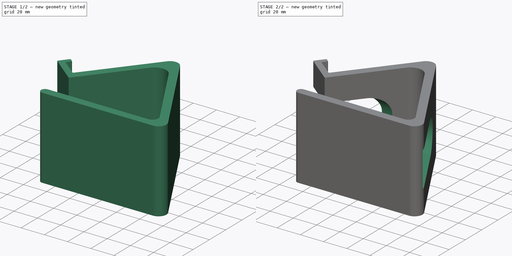
[diagram: build sequence overview — one tinted view per stage of 2, left to right]
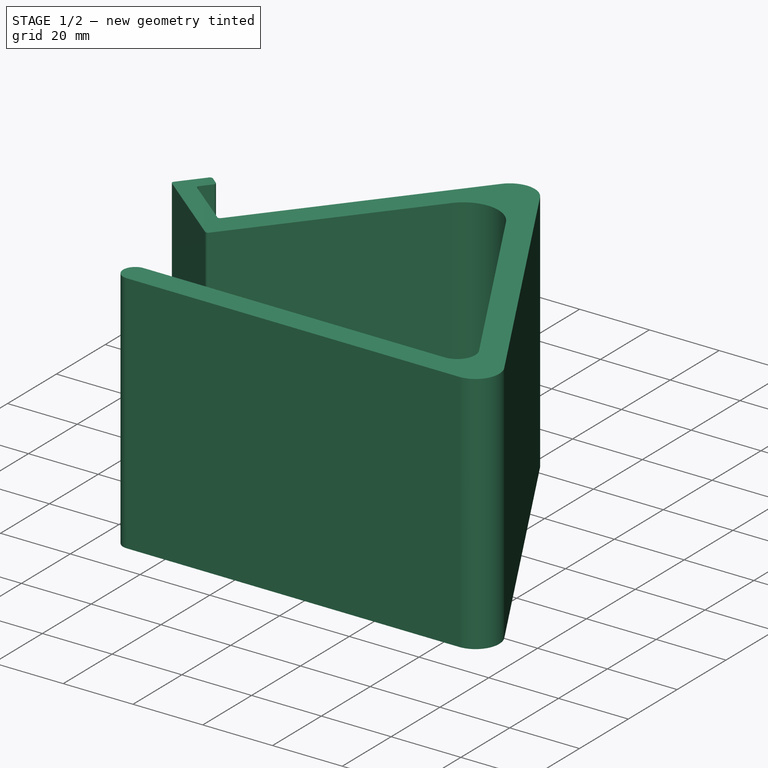
[diagram: stage 1 of 2 — iso view after this stage's code; geometry added in this stage tinted green]
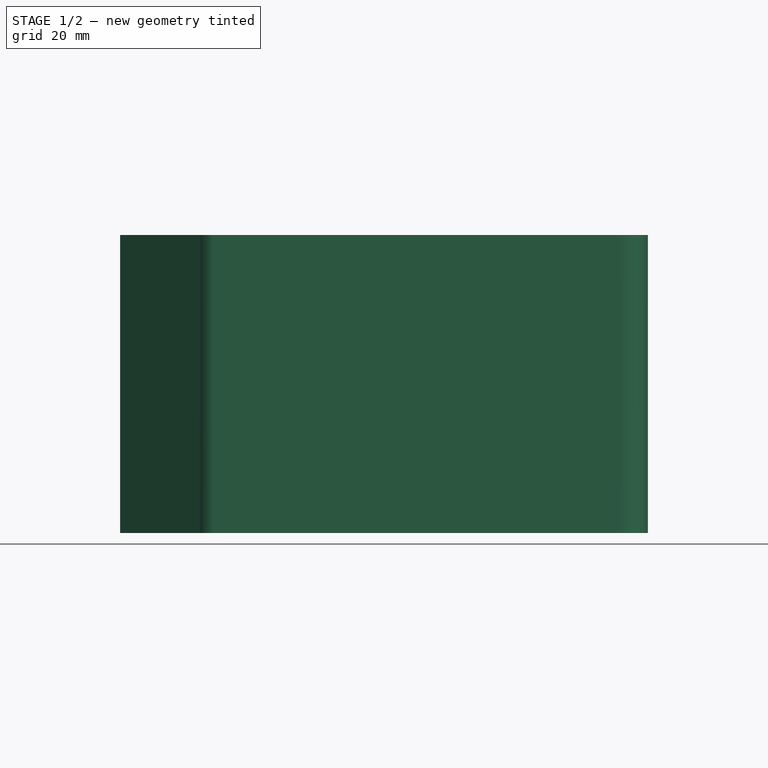
[diagram: stage 1 of 2 — front view after this stage's code; geometry added in this stage tinted green]
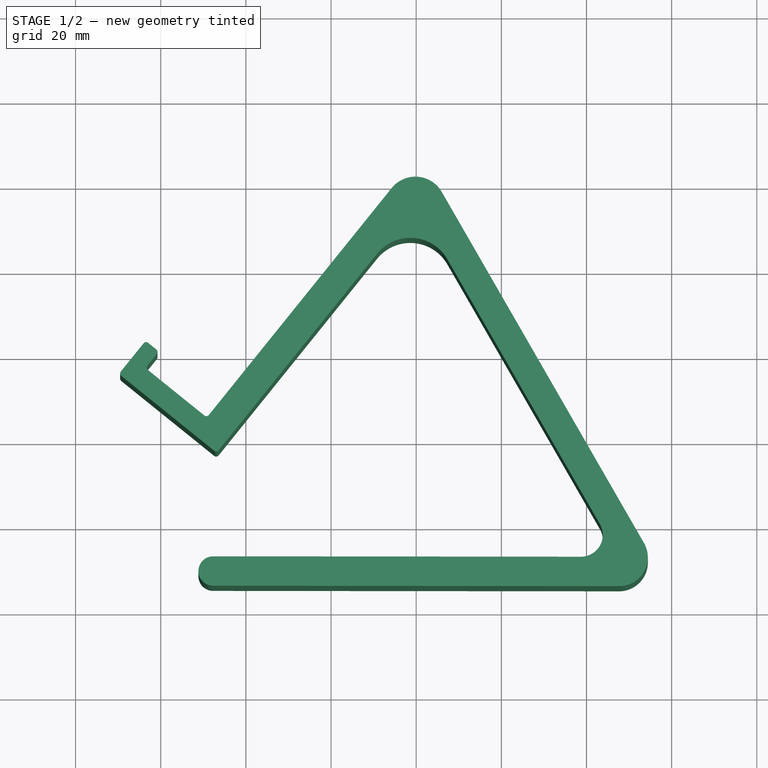
[diagram: stage 1 of 2 — top view after this stage's code; geometry added in this stage tinted green]
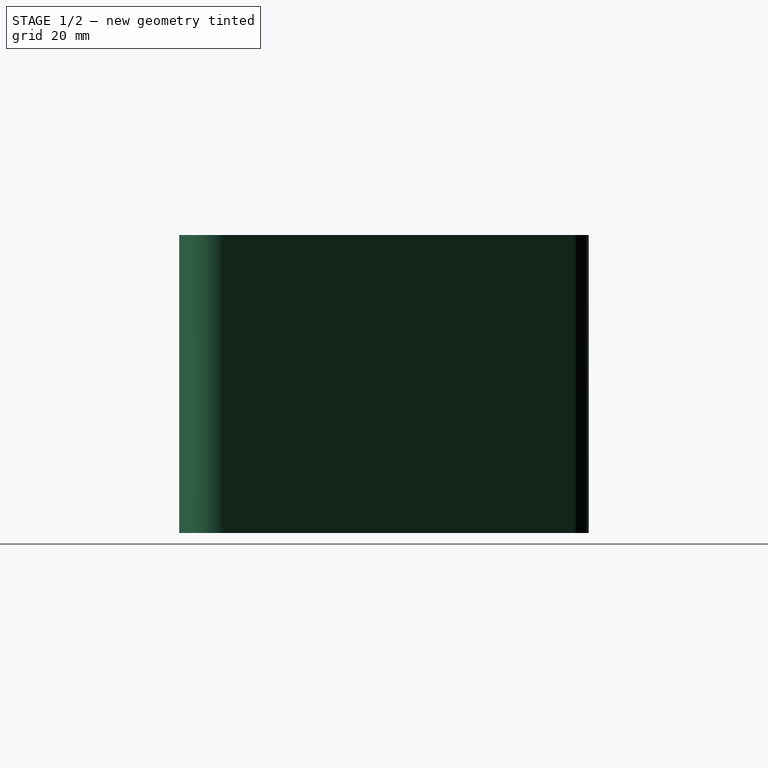
[diagram: stage 1 of 2 — right view after this stage's code; geometry added in this stage tinted green]
FCSTD DOCUMENT  (FreeCAD 1.0RUnknown)
Label: Phone-stand
License: All rights reserved
LicenseURL: https://en.wikipedia.org/wiki/All_rights_reserved
objects: Sketcher::SketchObject×2, PartDesign::Pad×1, PartDesign::Pocket×1, PartDesign::Body×1
note: 11 computed .brp shape members not serialized (recipe doc carries the construction recipe); baked Part::Feature solids carry a one-line shape summary decoded from their .brp

FEATURE [Sketcher::SketchObject] Sketch
  ArcFitTolerance = 1e-06
  AttachmentSupport = -> [XY_Plane]
  FullyConstrained = false
  MakeInternals = false
  MapMode = 5
  sketch-geometry (31):
    g0: LineSegment StartX=-9.20138 StartY=43.5798 StartZ=0 EndX=-46.3912 EndY=-2.578 EndZ=0
    g1: LineSegment StartX=-47.631 StartY=-27.5006 StartZ=0 EndX=38.6709 EndY=-27.5927 EndZ=0
    g2: LineSegment StartX=43.1299 StartY=-19.8886 StartZ=0 EndX=7.31928 EndY=42.2911 EndZ=0
    g3: Circle [constr] CenterX=0 CenterY=0 CenterZ=0 NormalX=0 NormalY=0 NormalZ=1 AngleXU=0 Radius=55
    g4: LineSegment StartX=-47.7568 StartY=-34.4055 StartZ=0 EndX=47.6405 EndY=-34.5072 EndZ=0
    g5: ArcOfCircle CenterX=47.6477 CenterY=-27.7485 CenterZ=0 NormalX=0 NormalY=0 NormalZ=-1 AngleXU=1.0472 Radius=6.75866 StartAngle=1.57187 EndAngle=3.66626
    g6: LineSegment StartX=53.5045 StartY=-24.3755 StartZ=0 EndX=5.99845 EndY=58.1117 EndZ=0
    g7: ArcOfCircle CenterX=-0.186467 CenterY=54.5497 CenterZ=0 NormalX=0 NormalY=0 NormalZ=-1 AngleXU=-1.0472 Radius=7.13731 StartAngle=1.72541 EndAngle=3.66626
    g8: LineSegment StartX=-5.74426 StartY=59.0277 StartZ=0 EndX=-48.705 EndY=5.70729 EndZ=0
    g9: ArcOfCircle CenterX=-47.6993 CenterY=-30.953 CenterZ=0 NormalX=0 NormalY=0 NormalZ=1 AngleXU=0 Radius=3.45299 StartAngle=1.55101 EndAngle=4.69575
    g10: ArcOfCircle CenterX=-1.3822 CenterY=37.2798 CenterZ=0 NormalX=0 NormalY=0 NormalZ=1 AngleXU=0 Radius=10.0414 StartAngle=0.522526 EndAngle=2.46338
    g11: GeomPoint [constr] X=0 Y=55 Z=0
    g12: ArcOfCircle CenterX=38.6764 CenterY=-22.4535 CenterZ=0 NormalX=0 NormalY=0 NormalZ=1 AngleXU=0 Radius=5.13922 StartAngle=4.71132 EndAngle=6.80571
    g13: GeomPoint [constr] X=47.5723 Y=-27.6022 Z=0
    g14: LineSegment StartX=-49.7596 StartY=5.59382 StartZ=0 EndX=-62.9974 EndY=16.2597 EndZ=0
    g15: LineSegment StartX=-63.1109 StartY=17.3142 StartZ=0 EndX=-60.915 EndY=20.0397 EndZ=0
    g16: LineSegment StartX=-61.0284 StartY=21.0942 StartZ=0 EndX=-62.9752 EndY=22.6628 EndZ=0
    g17: LineSegment StartX=-64.0298 StartY=22.5493 StartZ=0 EndX=-69.3627 EndY=15.9304 EndZ=0
    g18: LineSegment StartX=-69.2492 StartY=14.8758 StartZ=0 EndX=-47.4457 EndY=-2.69147 EndZ=0
    g19: ArcOfCircle CenterX=-68.7787 CenterY=15.4598 CenterZ=0 NormalX=0 NormalY=0 NormalZ=1 AngleXU=0 Radius=0.75 StartAngle=2.46338 EndAngle=4.03418
    g20: GeomPoint [constr] X=-69.8332 Y=15.3464 Z=0
    g21: ArcOfCircle CenterX=-62.5269 CenterY=16.8437 CenterZ=0 NormalX=0 NormalY=0 NormalZ=1 AngleXU=0 Radius=0.75 StartAngle=2.46338 EndAngle=4.03418
    g22: GeomPoint [constr] X=-63.5814 Y=16.7302 Z=0
    g23: ArcOfCircle CenterX=-49.289 CenterY=6.17785 CenterZ=0 NormalX=0 NormalY=0 NormalZ=1 AngleXU=0 Radius=0.75 StartAngle=4.03418 EndAngle=5.60497
    g24: GeomPoint [constr] X=-49.1756 Y=5.12327 Z=0
    g25: ArcOfCircle CenterX=-46.9752 CenterY=-2.10745 CenterZ=0 NormalX=0 NormalY=0 NormalZ=1 AngleXU=0 Radius=0.75 StartAngle=4.03418 EndAngle=5.60497
    g26: GeomPoint [constr] X=-46.8617 Y=-3.16202 Z=0
    g27: ArcOfCircle CenterX=-61.499 CenterY=20.5102 CenterZ=0 NormalX=0 NormalY=0 NormalZ=1 AngleXU=0 Radius=0.75 StartAngle=5.60497 EndAngle=7.17577
    g28: GeomPoint [constr] X=-60.4444 Y=20.6237 Z=0
    g29: ArcOfCircle CenterX=-63.4457 CenterY=22.0787 CenterZ=0 NormalX=0 NormalY=0 NormalZ=1 AngleXU=0 Radius=0.75 StartAngle=0.892583 EndAngle=2.46338
    g30: GeomPoint [constr] X=-63.5592 Y=23.1333 Z=0
  constraints (63):
    c: PointOnObject(g1,g3)
    c: PointOnObject(g13,g3)
    c: PointOnObject(g11,g3)
    c: Radius(g3) = 55
    c: Coincident(g3,g-1)
    c: PointOnObject(g11,g-2)
    c: Tangent(g4,g5) = -1.5708
    c: Tangent(g5,g6) = -1.5708
    c: Tangent(g6,g7) = -1.5708
    c: Tangent(g7,g8) = -1.5708
    c: Coincident(g9,g1)
    c: Coincident(g9,g4)
    c: PointOnObject(g11,g0)
    c: PointOnObject(g11,g2)
    c: Tangent(g0,g10) = -1.5708
    c: Tangent(g2,g10) = -1.5708
    c: PointOnObject(g13,g1)
    c: PointOnObject(g13,g2)
    c: Tangent(g1,g12) = -1.5708
    c: Tangent(g2,g12) = -1.5708
    c: Perpendicular(g8,g14)
    c: Perpendicular(g17,g18)
    c: Perpendicular(g16,g15)
    c: Perpendicular(g18,g0)
    c: Parallel(g8,g0)
    c: Perpendicular(g16,g17)
    c: Distance(g0,g8) = 7
    c: Distance(g24,g18) = 5
    c: Distance(g30,g15) = 4
    c: Distance(g22,g28) = 5
    c: PointOnObject(g20,g18)
    c: PointOnObject(g20,g17)
    c: Tangent(g18,g19) = -1.5708
    c: Tangent(g17,g19) = -1.5708
    c: PointOnObject(g22,g14)
    c: PointOnObject(g22,g15)
    c: Tangent(g14,g21) = 1.5708
    c: Tangent(g15,g21) = 1.5708
    c: PointOnObject(g24,g14)
    c: PointOnObject(g24,g8)
    c: Tangent(g14,g23) = 1.5708
    c: Tangent(g8,g23) = 1.5708
    c: PointOnObject(g26,g0)
    c: PointOnObject(g26,g18)
    c: Tangent(g0,g25) = 1.5708
    c: Tangent(g18,g25) = -1.5708
    c: PointOnObject(g28,g15)
    c: PointOnObject(g28,g16)
    c: Tangent(g15,g27) = -1.5708
    c: Tangent(g16,g27) = -1.5708
    c: PointOnObject(g30,g17)
    c: PointOnObject(g30,g16)
    c: Tangent(g17,g29) = -1.5708
    c: Tangent(g16,g29) = -1.5708
    c: Equal(g27,g29)
    c: Equal(g29,g21)
    c: Equal(g21,g19)
    c: Equal(g19,g23)
    c: Equal(g23,g25)
    c: Radius(g19) = 0.75
    c: Distance(g14,g14) = 17
    c: Parallel(g2,g6)
    c: Parallel(g1,g4)
FEATURE [PartDesign::Pad] Pad
  Direction = (0,0,1)
  Length = 70
  Length2 = 10
  Profile = -> Sketch
  ReferenceAxis = -> Sketch [N_Axis]
  Refine = true
  Suppressed = false
  Type = 0
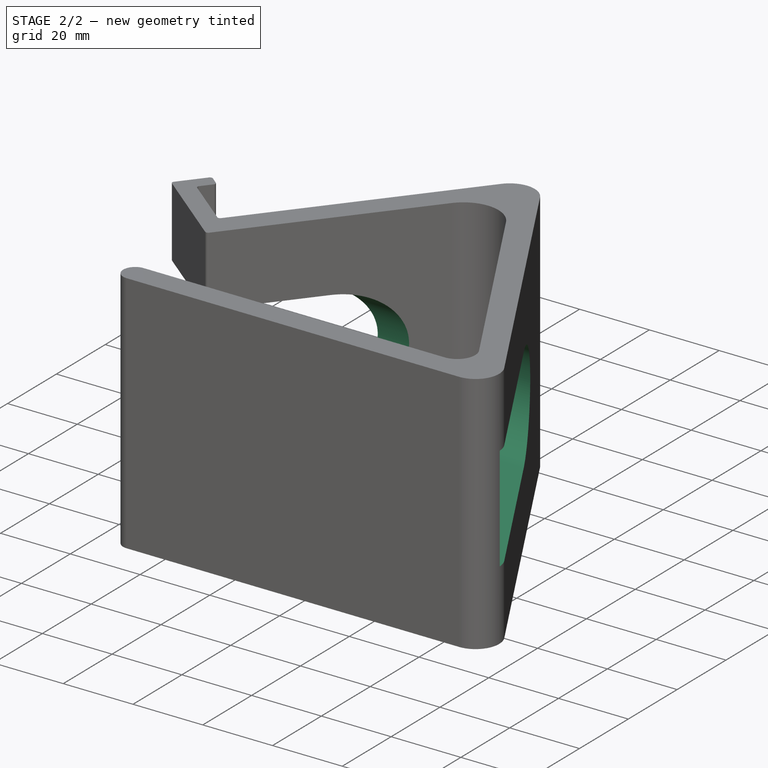
[diagram: stage 2 of 2 — iso view after this stage's code; geometry added in this stage tinted green]
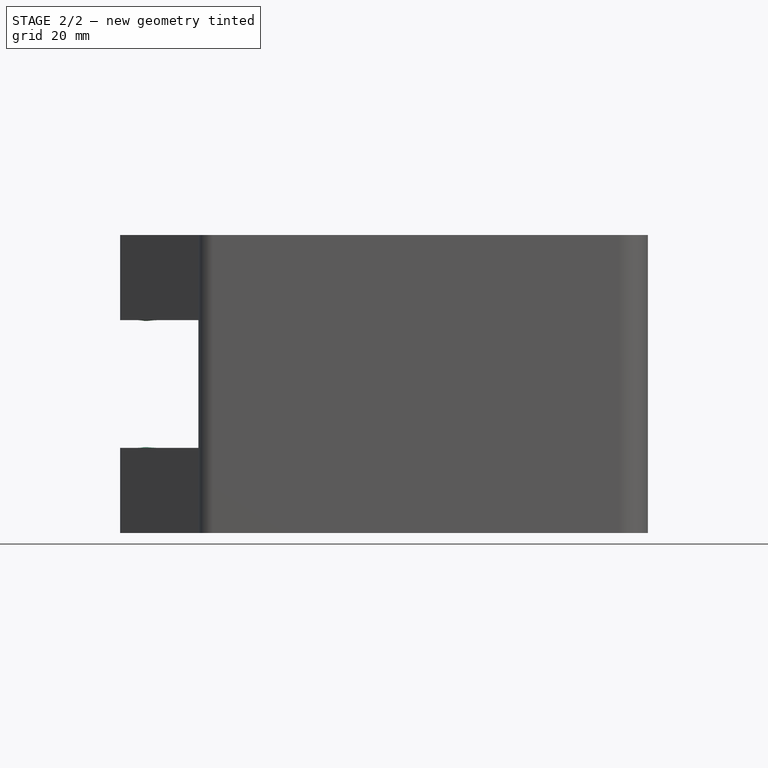
[diagram: stage 2 of 2 — front view after this stage's code; geometry added in this stage tinted green]
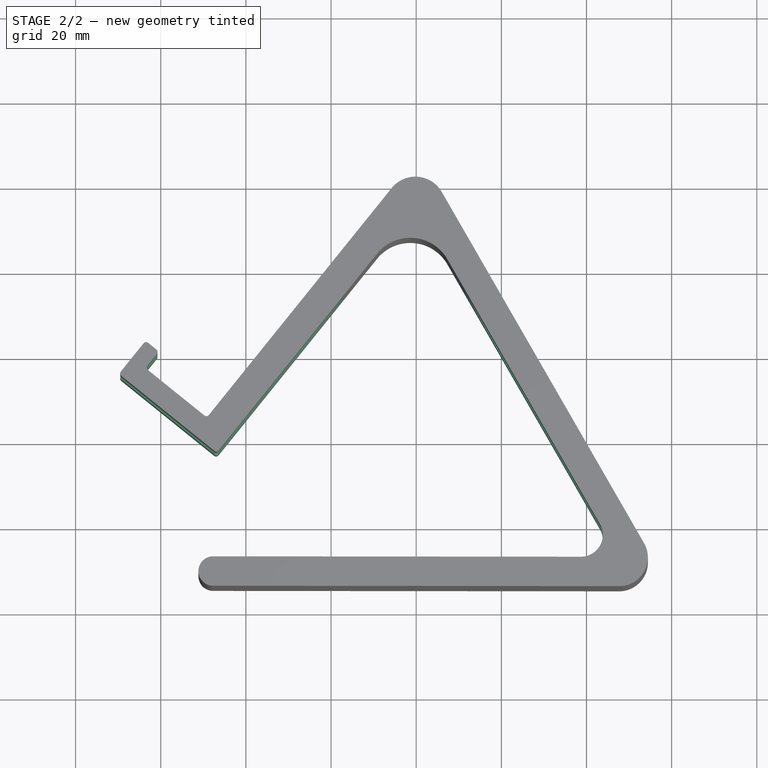
[diagram: stage 2 of 2 — top view after this stage's code; geometry added in this stage tinted green]
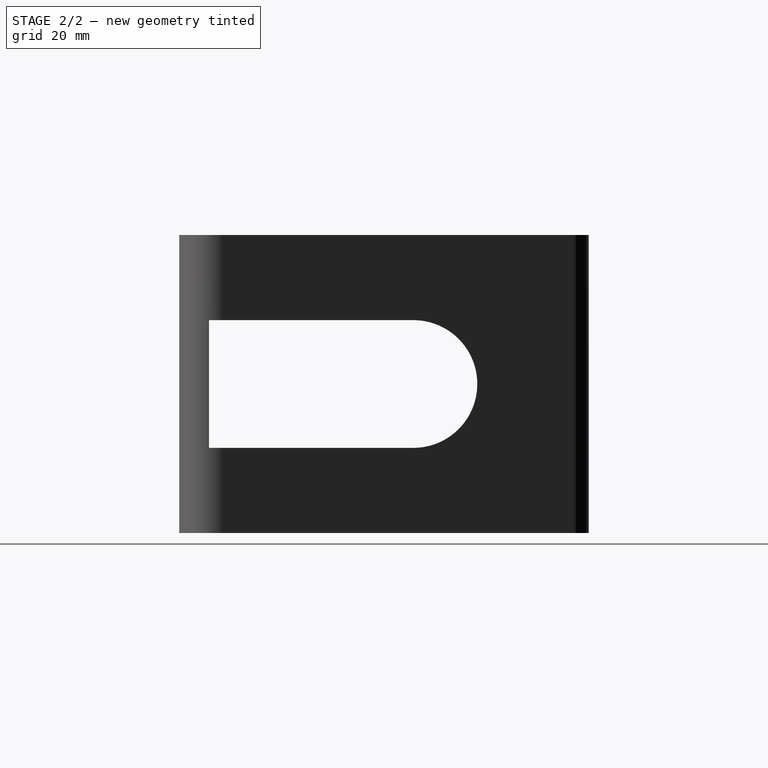
[diagram: stage 2 of 2 — right view after this stage's code; geometry added in this stage tinted green]
FEATURE [Sketcher::SketchObject] Sketch001
  ArcFitTolerance = 1e-06
  AttachmentSupport = -> [YZ_Plane]
  ExternalGeometry = -> [Pad]
  FullyConstrained = true
  MakeInternals = false
  MapMode = 5
  Placement = pos=(0,0,0) rot=(0.57735,0.57735,0.57735;2.0944rad)
  sketch-geometry (6):
    g0: LineSegment StartX=-27.5006 StartY=50 StartZ=0 EndX=-27.5006 EndY=20 EndZ=0
    g1: LineSegment StartX=-27.5006 StartY=20 StartZ=0 EndX=20.4994 EndY=20 EndZ=0
    g2: LineSegment StartX=20.4994 StartY=50 StartZ=0 EndX=-27.5006 EndY=50 EndZ=0
    g3: GeomPoint X=20.4994 Y=35 Z=0
    g4: ArcOfCircle CenterX=20.4994 CenterY=35 CenterZ=0 NormalX=0 NormalY=0 NormalZ=1 AngleXU=0 Radius=15 StartAngle=4.71239 EndAngle=7.85398
    g5: LineSegment [constr] StartX=-27.5006 StartY=35 StartZ=0 EndX=52.4994 EndY=35 EndZ=0
  constraints (17):
    c: Coincident(g0,g1)
    c: Coincident(g2,g0)
    c: Vertical(g0)
    c: Horizontal(g1)
    c: Horizontal(g2)
    c: Coincident(g4,g3)
    c: PointOnObject(g0,g-3)
    c: Horizontal(g5)
    c: PointOnObject(g3,g5)
    c: DistanceY(g0,g0) = 30
    c: DistanceX(g2,g2) = 48
    c: Symmetric(g-3,g-3,g5)
    c: Coincident(g2,g4)
    c: Coincident(g1,g4)
    c: Vertical(g3,g2)
    c: Vertical(g2,g1)
    c: DistanceX(g5,g5) = 80
FEATURE [PartDesign::Pocket] Pocket
  BaseFeature = -> Pad
  Direction = (-1,0,0)
  Length = 75
  Length2 = 65
  Profile = -> Sketch001
  ReferenceAxis = -> Sketch001 [N_Axis]
  Refine = true
  Suppressed = false
  Type = 4
FEATURE [PartDesign::Body] Body
  AllowCompound = false
  Group = -> [Sketch,Pad,Sketch001,Pocket]
  Origin = -> Origin
  Tip = -> Pocket
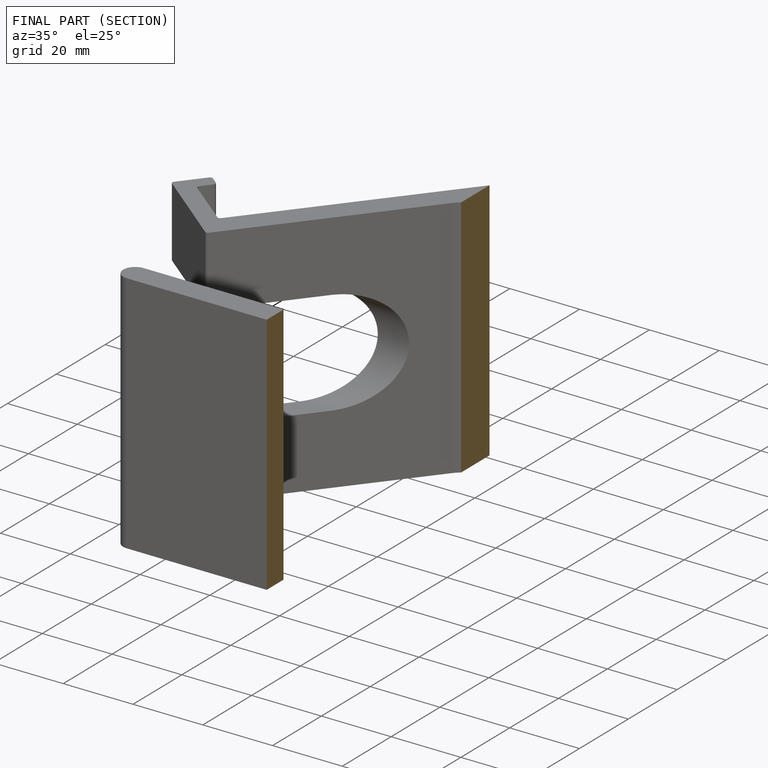
[diagram: finished part — half-section view (interior)]
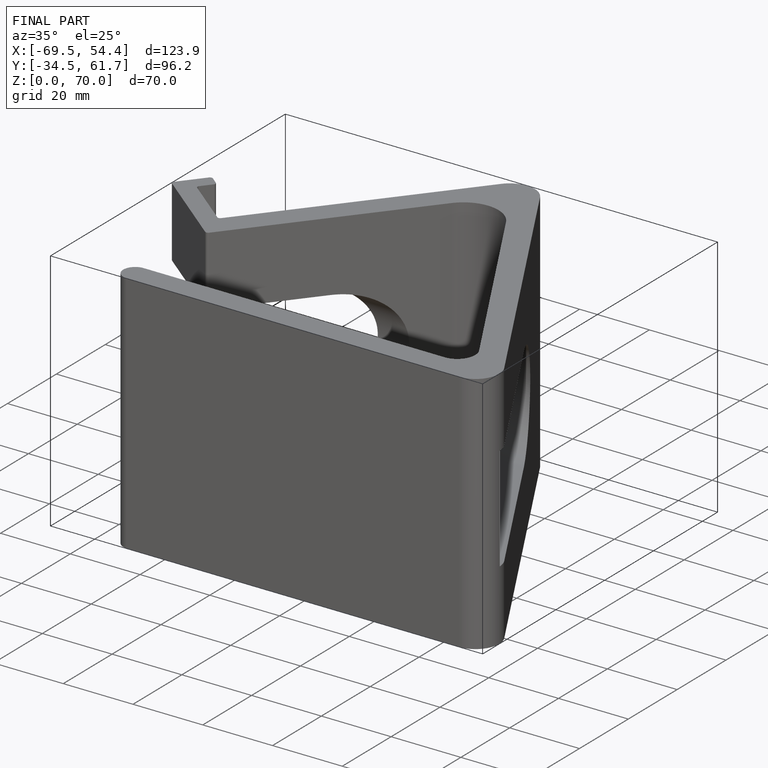
[diagram: finished part — iso view with bounding-box wireframe]
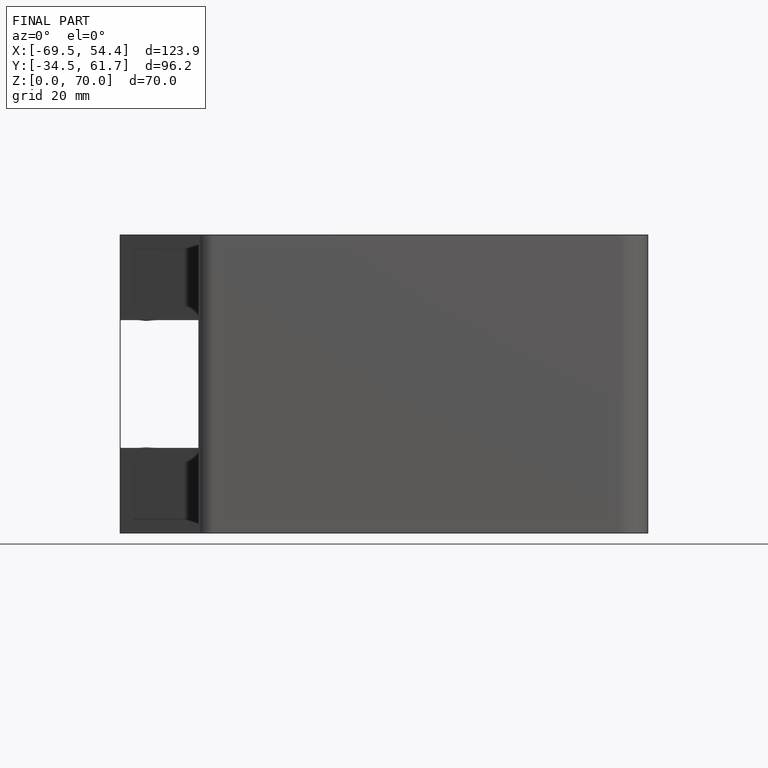
[diagram: finished part — front view with bounding-box wireframe]
